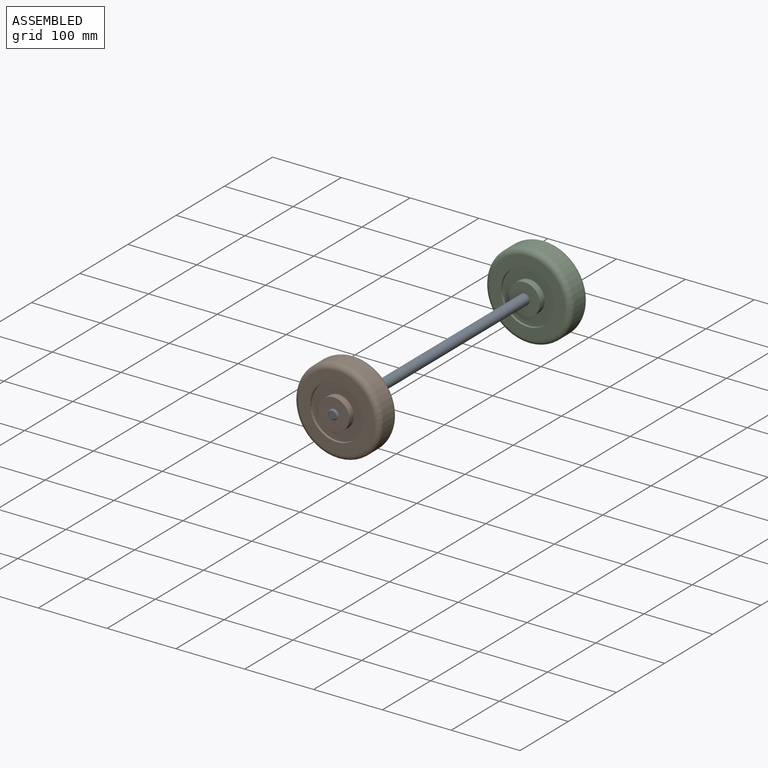
[diagram: assembled view]
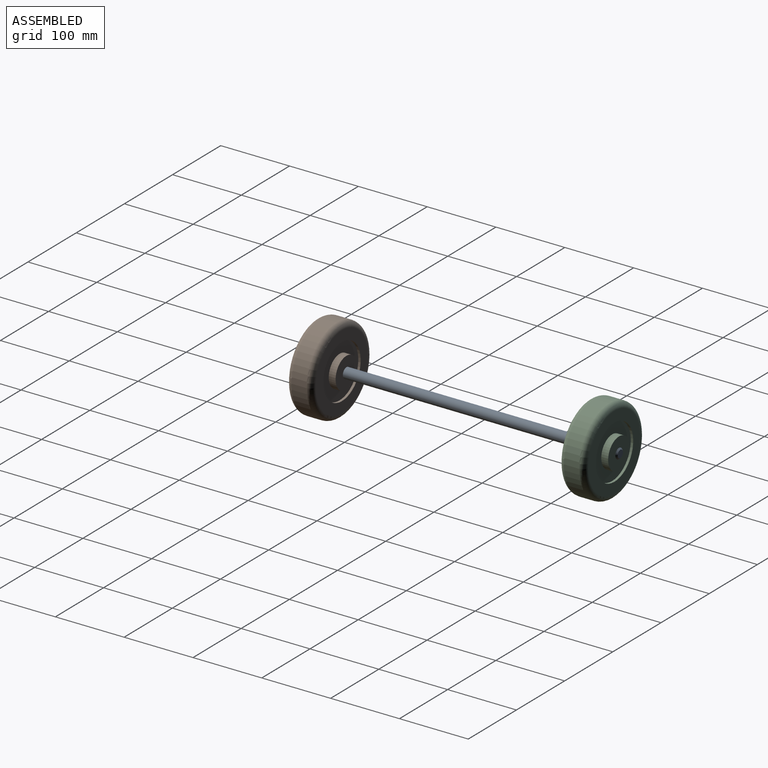
[diagram: assembled view, second angle]
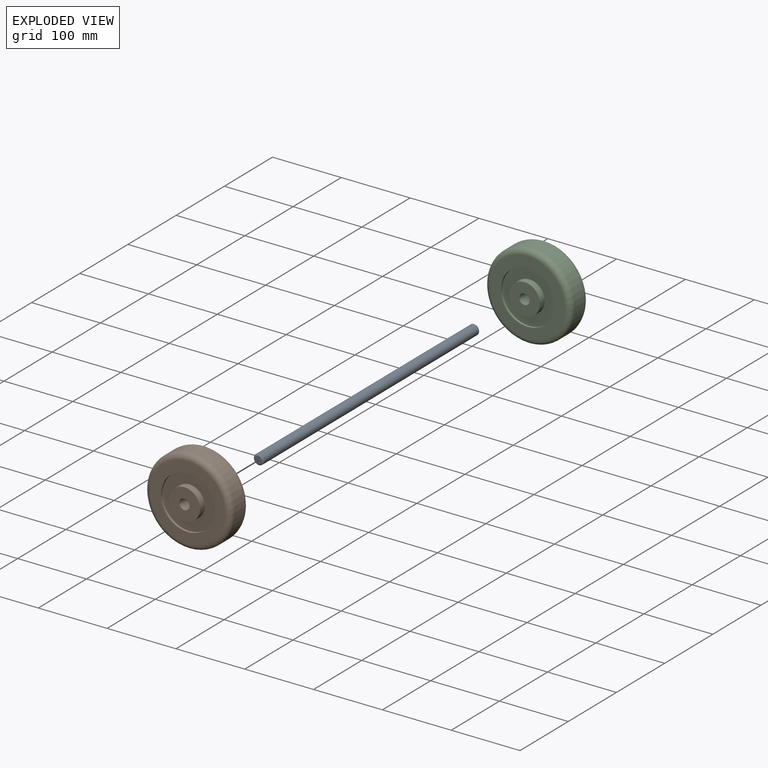
[diagram: exploded view]
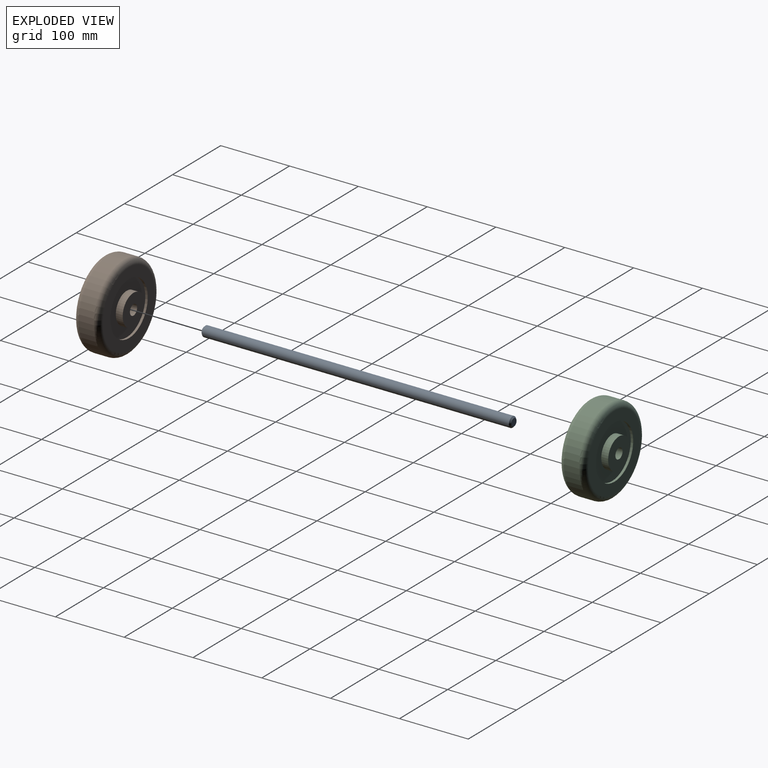
[diagram: exploded view, second angle]
ASSEMBLY  parts=3 mates=2
PART A: 5 faces, bbox 15x450x15 mm
  f0: cylinder r=7.5mm len=446mm, axis (0,1,0), area 21017.3mm2, adj f3,f4
  f1: plane 11x11mm, normal (0,-1,0), area 95mm2, adj f4
  f2: plane 11x11mm, normal (0,1,0), area 95mm2, adj f3
  f3: cone r=7.5mm half-angle=45deg, axis (0,-1,0), area 115.5mm2, adj f0,f2
  f4: cone r=5.5mm half-angle=45deg, axis (0,1,0), area 115.5mm2, adj f0,f1
PART B: 14 faces, bbox 135.3x50x135.3 mm
  f0: cylinder r=22.5mm len=45mm, axis (0,1,0), area 1413.7mm2, adj f4,f6
  f1: cylinder r=7.5mm len=50mm, axis (0,1,0), area 2356.2mm2, adj f3,f4
  f2: cylinder r=22.5mm len=45mm, axis (0,1,0), area 1413.7mm2, adj f3,f5
  f3: plane 45x45mm, normal (0,-1,0), area 1413.7mm2, adj f1,f2
  f4: plane 45x45mm, normal (0,1,0), area 1413.7mm2, adj f0,f1
  f5: plane 77.55x77.55mm, normal (0,-1,0), area 3132.9mm2, adj f2,f8
  f6: plane 77.55x77.55mm, normal (0,1,0), area 3132.9mm2, adj f0,f7
  f7: cylinder r=38.77mm len=77.55mm, axis (0,1,0), area 852.7mm2, adj f6,f11
  f8: cylinder r=38.77mm len=77.55mm, axis (0,1,0), area 852.7mm2, adj f5,f10
  f9: cylinder r=62.5mm len=125mm, axis (0,1,0), area 8246.7mm2, adj f12,f13
  f10: plane 109x109mm, normal (0,-1,0), area 4608mm2, adj f8,f13
  f11: plane 109x109mm, normal (0,1,0), area 4608mm2, adj f7,f12
  f12: torus R=54.5mm, axis (0,-1,0), area 4705.3mm2, adj f9,f11
  f13: torus R=54.5mm, axis (0,-1,0), area 4705.3mm2, adj f9,f10
PART C: same geometry as B
PLACE A t=(161.05,373.65,-549.5)mm
PLACE B t=(161.05,-49.35,-549.5)mm
PLACE C t=(161.05,346.65,-549.5)mm
MATE fastened A.f0 <-> C.f1  axis (0,-1,0) through (161.05,371.65,-549.5)mm
MATE fastened B.f1 <-> A.f0  axis (0,-1,0) through (161.05,-74.35,-549.5)mm
